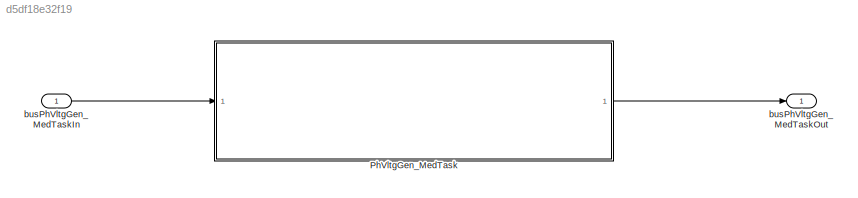
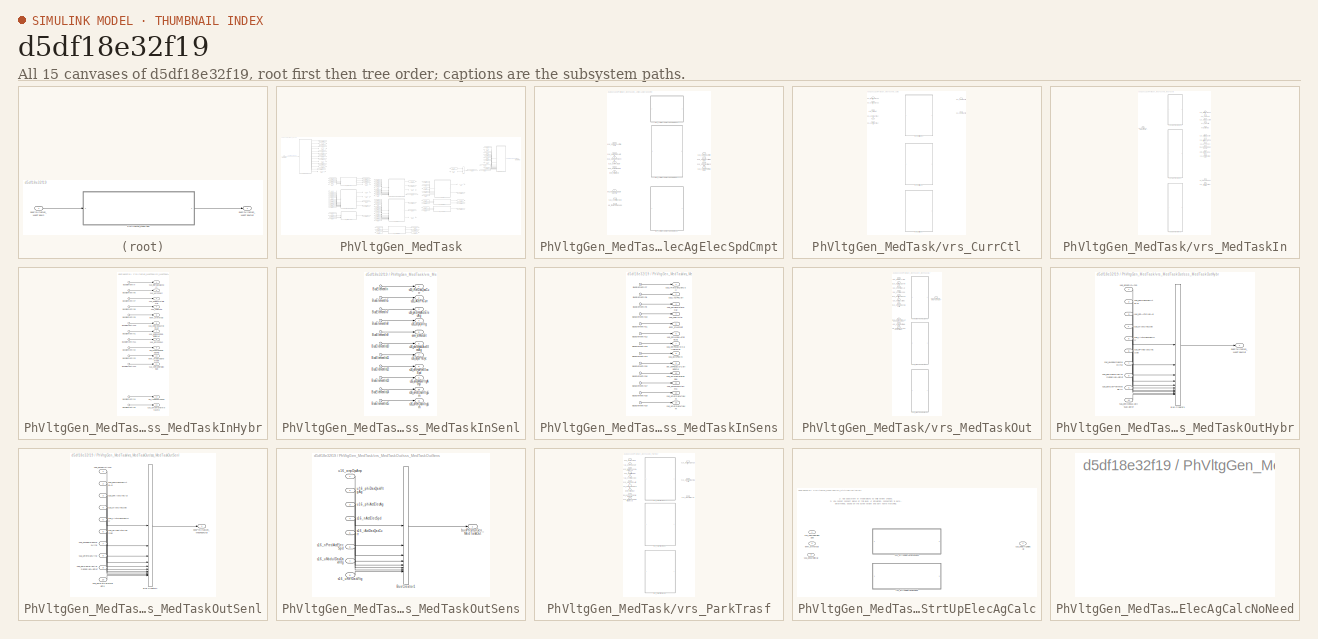
[diagram: thumbnail index - all 15 canvases of the model, root first then tree order]
MODEL slx_d5df18e32f19
KIND model
CONFIG AbsTol = auto
CONFIG EnableMultiTasking = on
CONFIG FixedStep = 0.0005
CONFIG MaxStep = auto
CONFIG MinStep = auto
CONFIG RelTol = 1e-3
CONFIG SampleTimeConstraint = Unconstrained
CONFIG SolverName = FixedStepAuto
CONFIG StartTime = 0.0
CONFIG StopTime = 5
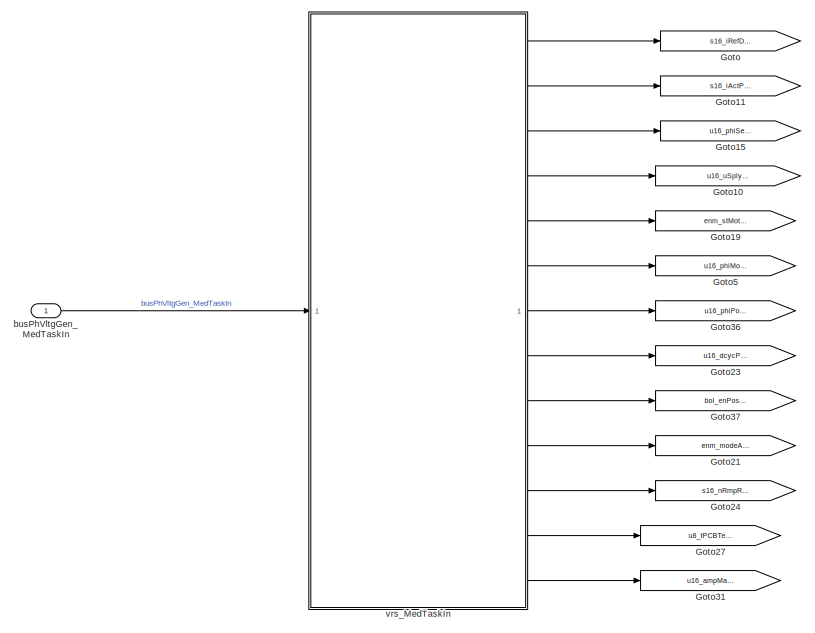
[diagram: PhVltgGen_MedTask - part 1/5, top left region]
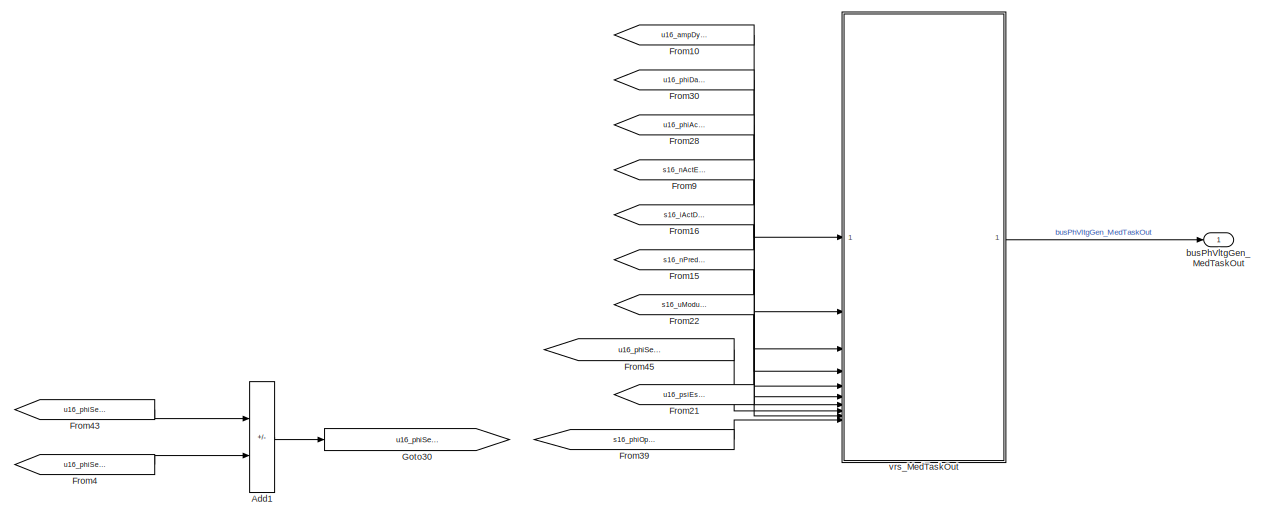
[diagram: PhVltgGen_MedTask - part 2/5, top right region]
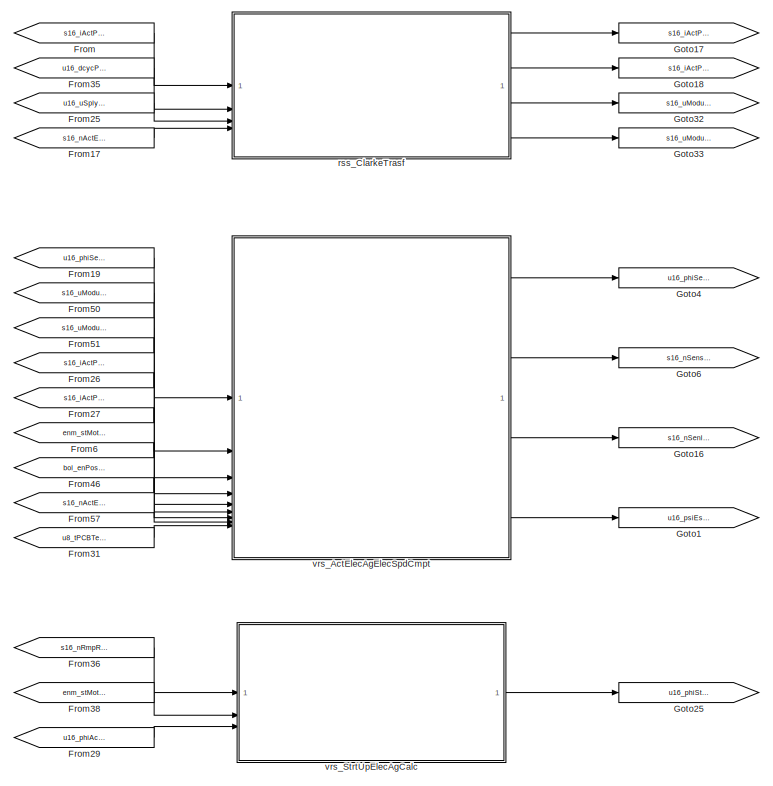
[diagram: PhVltgGen_MedTask - part 3/5, middle left region]
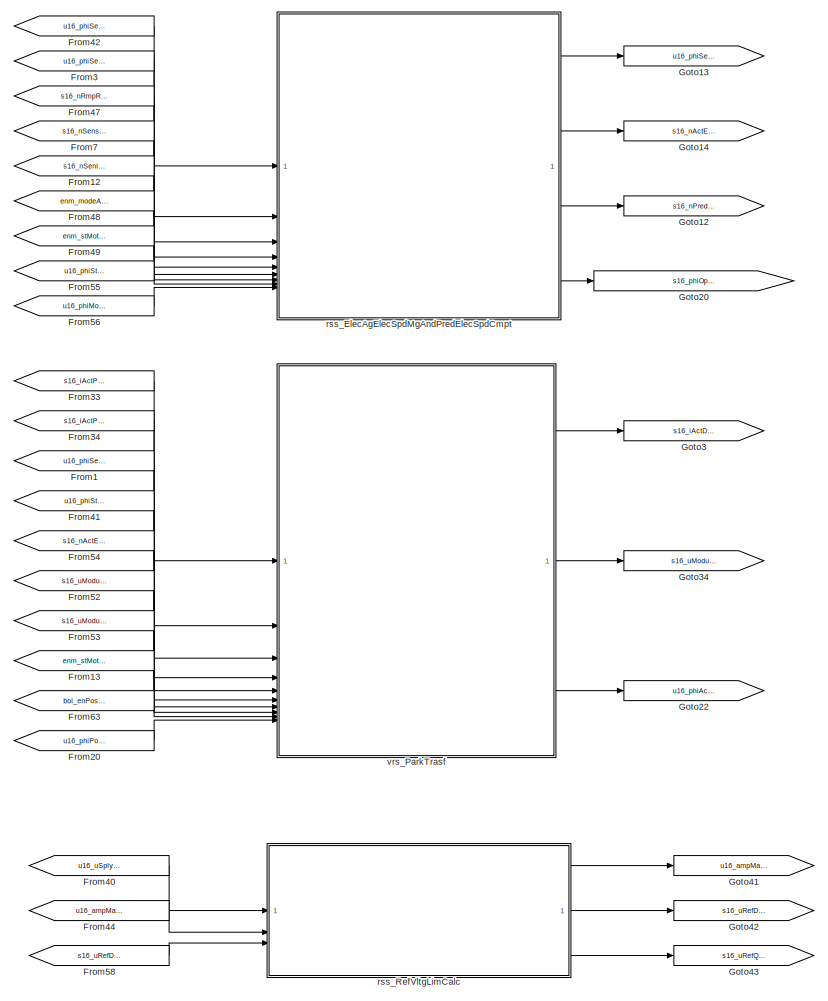
[diagram: PhVltgGen_MedTask - part 4/5, bottom center region]
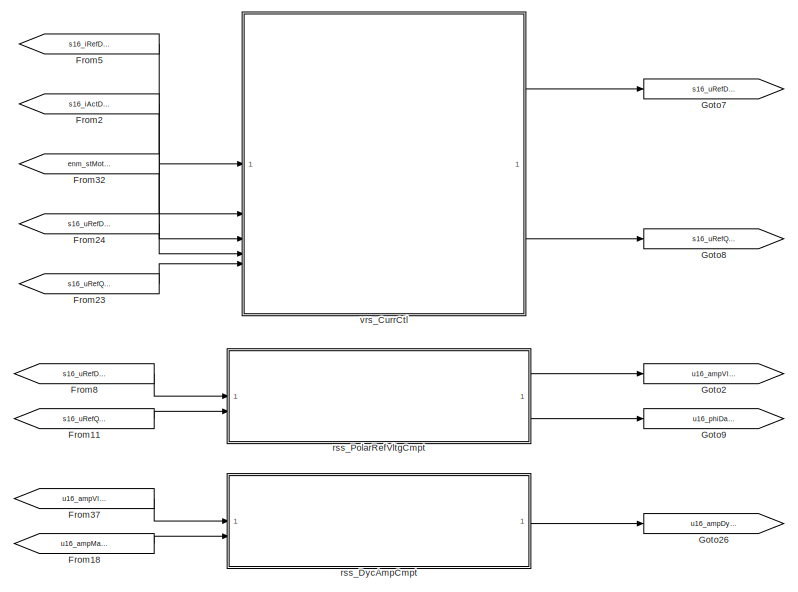
[diagram: PhVltgGen_MedTask - part 5/5, middle right region]
BLOCK [SubSystem] PhVltgGen_MedTask
  RTWFcnName = PhVltgGen_MedTask
  RTWFcnNameOpts = User specified
  RTWSystemCode = Nonreusable function
  TreatAsAtomicUnit = on
BLOCK [Sum] PhVltgGen_MedTask/Add1
  IconShape = rectangular
  InitFcn = Simulink.suppressDiagnostic(gcb,...\n'SimulinkFixedPoint:util:Overflowoccurred');
  Inputs = +-
  OutDataTypeStr = Inherit: Same as first input
BLOCK [From] PhVltgGen_MedTask/From
  GotoTag = s16_iActPhCurr
BLOCK [From] PhVltgGen_MedTask/From1
  GotoTag = u16_phiSensSenlActElecAg
BLOCK [From] PhVltgGen_MedTask/From10
  GotoTag = u16_ampDycAmp
BLOCK [From] PhVltgGen_MedTask/From11
  GotoTag = s16_uRefQaxVltg
BLOCK [From] PhVltgGen_MedTask/From12
  GotoTag = s16_nSenlActElecSpd
BLOCK [From] PhVltgGen_MedTask/From13
  GotoTag = enm_stMotoSt
BLOCK [From] PhVltgGen_MedTask/From15
  GotoTag = s16_nPredActElecSpd
BLOCK [From] PhVltgGen_MedTask/From16
  GotoTag = s16_iActDaxQaxCurr
BLOCK [From] PhVltgGen_MedTask/From17
  GotoTag = s16_nActElecSpd
BLOCK [From] PhVltgGen_MedTask/From18
  GotoTag = u16_ampMaxVltgAmp
BLOCK [From] PhVltgGen_MedTask/From19
  GotoTag = u16_phiSensActElecAg
BLOCK [From] PhVltgGen_MedTask/From2
  GotoTag = s16_iActDaxQaxCurr
BLOCK [From] PhVltgGen_MedTask/From20
  GotoTag = u16_phiPosSCDCalibElecAg
BLOCK [From] PhVltgGen_MedTask/From21
  GotoTag = u16_psiEstPermMagFlx
BLOCK [From] PhVltgGen_MedTask/From22
  GotoTag = s16_uModulDaxQaxVltg
BLOCK [From] PhVltgGen_MedTask/From23
  GotoTag = s16_uRefQaxVltgLim
BLOCK [From] PhVltgGen_MedTask/From24
  GotoTag = s16_uRefDaxVltgLim
BLOCK [From] PhVltgGen_MedTask/From25
  GotoTag = u16_uSplyVltg
BLOCK [From] PhVltgGen_MedTask/From26
  GotoTag = s16_iActPhAlCurr
BLOCK [From] PhVltgGen_MedTask/From27
  GotoTag = s16_iActPhBeCurr
BLOCK [From] PhVltgGen_MedTask/From28
  GotoTag = u16_phiActElecAg
BLOCK [From] PhVltgGen_MedTask/From29
  GotoTag = u16_phiActElecAg
BLOCK [From] PhVltgGen_MedTask/From3
  GotoTag = u16_phiSenlActElecAg
BLOCK [From] PhVltgGen_MedTask/From30
  GotoTag = u16_phiDaxQaxVltgAg
BLOCK [From] PhVltgGen_MedTask/From31
  GotoTag = u8_tPCBTempSubs
BLOCK [From] PhVltgGen_MedTask/From32
  GotoTag = enm_stMotoSt
BLOCK [From] PhVltgGen_MedTask/From33
  GotoTag = s16_iActPhAlCurr
BLOCK [From] PhVltgGen_MedTask/From34
  GotoTag = s16_iActPhBeCurr
BLOCK [From] PhVltgGen_MedTask/From35
  GotoTag = u16_dcycPhDyc
BLOCK [From] PhVltgGen_MedTask/From36
  GotoTag = s16_nRmpRefElecSpd
BLOCK [From] PhVltgGen_MedTask/From37
  GotoTag = u16_ampVltgAmp
BLOCK [From] PhVltgGen_MedTask/From38
  GotoTag = enm_stMotoSt
BLOCK [From] PhVltgGen_MedTask/From39
  GotoTag = s16_phiOpnLpAgClsLpAgDvt
BLOCK [From] PhVltgGen_MedTask/From4
  GotoTag = u16_phiSenlActElecAg
BLOCK [From] PhVltgGen_MedTask/From40
  GotoTag = u16_uSplyVltg
BLOCK [From] PhVltgGen_MedTask/From41
  GotoTag = u16_phiStrtUpElecAg
BLOCK [From] PhVltgGen_MedTask/From42
  GotoTag = u16_phiSensActElecAg
BLOCK [From] PhVltgGen_MedTask/From43
  GotoTag = u16_phiSensActElecAg
BLOCK [From] PhVltgGen_MedTask/From44
  GotoTag = u16_ampMaxNrmVltgAmp
BLOCK [From] PhVltgGen_MedTask/From45
  GotoTag = u16_phiSenlElecAgSensElecAgDvt
BLOCK [From] PhVltgGen_MedTask/From46
  GotoTag = bol_enPosSCDCalibEnFlg
BLOCK [From] PhVltgGen_MedTask/From47
  GotoTag = s16_nRmpRefElecSpd
BLOCK [From] PhVltgGen_MedTask/From48
  GotoTag = enm_modeAgEvalMode
BLOCK [From] PhVltgGen_MedTask/From49
  GotoTag = enm_stMotoSt
BLOCK [From] PhVltgGen_MedTask/From5
  GotoTag = s16_iRefDaxQaxCurr
BLOCK [From] PhVltgGen_MedTask/From50
  GotoTag = s16_uModulPhAlVltg
BLOCK [From] PhVltgGen_MedTask/From51
  GotoTag = s16_uModulPhBeVltg
BLOCK [From] PhVltgGen_MedTask/From52
  GotoTag = s16_uModulPhAlVltg
BLOCK [From] PhVltgGen_MedTask/From53
  GotoTag = s16_uModulPhBeVltg
BLOCK [From] PhVltgGen_MedTask/From54
  GotoTag = s16_nActElecSpd
BLOCK [From] PhVltgGen_MedTask/From55
  GotoTag = u16_phiStrtUpElecAg
BLOCK [From] PhVltgGen_MedTask/From56
  GotoTag = u16_phiModulActElecAg
BLOCK [From] PhVltgGen_MedTask/From57
  GotoTag = s16_nActElecSpd
BLOCK [From] PhVltgGen_MedTask/From58
  GotoTag = s16_uRefDaxVltg
BLOCK [From] PhVltgGen_MedTask/From6
  GotoTag = enm_stMotoSt
BLOCK [From] PhVltgGen_MedTask/From63
  GotoTag = bol_enPosSCDCalibEnFlg
BLOCK [From] PhVltgGen_MedTask/From7
  GotoTag = s16_nSensActElecSpd
BLOCK [From] PhVltgGen_MedTask/From8
  GotoTag = s16_uRefDaxVltg
BLOCK [From] PhVltgGen_MedTask/From9
  GotoTag = s16_nActElecSpd
BLOCK [Goto] PhVltgGen_MedTask/Goto
  GotoTag = s16_iRefDaxQaxCurr
BLOCK [Goto] PhVltgGen_MedTask/Goto1
  GotoTag = u16_psiEstPermMagFlx
BLOCK [Goto] PhVltgGen_MedTask/Goto10
  GotoTag = u16_uSplyVltg
BLOCK [Goto] PhVltgGen_MedTask/Goto11
  GotoTag = s16_iActPhCurr
BLOCK [Goto] PhVltgGen_MedTask/Goto12
  GotoTag = s16_nPredActElecSpd
BLOCK [Goto] PhVltgGen_MedTask/Goto13
  GotoTag = u16_phiSensSenlActElecAg
BLOCK [Goto] PhVltgGen_MedTask/Goto14
  GotoTag = s16_nActElecSpd
BLOCK [Goto] PhVltgGen_MedTask/Goto15
  GotoTag = u16_phiSensActElecAg
BLOCK [Goto] PhVltgGen_MedTask/Goto16
  GotoTag = s16_nSenlActElecSpd
BLOCK [Goto] PhVltgGen_MedTask/Goto17
  GotoTag = s16_iActPhAlCurr
BLOCK [Goto] PhVltgGen_MedTask/Goto18
  GotoTag = s16_iActPhBeCurr
BLOCK [Goto] PhVltgGen_MedTask/Goto19
  GotoTag = enm_stMotoSt
BLOCK [Goto] PhVltgGen_MedTask/Goto2
  GotoTag = u16_ampVltgAmp
BLOCK [Goto] PhVltgGen_MedTask/Goto20
  GotoTag = s16_phiOpnLpAgClsLpAgDvt
BLOCK [Goto] PhVltgGen_MedTask/Goto21
  GotoTag = enm_modeAgEvalMode
BLOCK [Goto] PhVltgGen_MedTask/Goto22
  GotoTag = u16_phiActElecAg
BLOCK [Goto] PhVltgGen_MedTask/Goto23
  GotoTag = u16_dcycPhDyc
BLOCK [Goto] PhVltgGen_MedTask/Goto24
  GotoTag = s16_nRmpRefElecSpd
BLOCK [Goto] PhVltgGen_MedTask/Goto25
  GotoTag = u16_phiStrtUpElecAg
BLOCK [Goto] PhVltgGen_MedTask/Goto26
  GotoTag = u16_ampDycAmp
BLOCK [Goto] PhVltgGen_MedTask/Goto27
  GotoTag = u8_tPCBTempSubs
BLOCK [Goto] PhVltgGen_MedTask/Goto3
  GotoTag = s16_iActDaxQaxCurr
BLOCK [Goto] PhVltgGen_MedTask/Goto30
  GotoTag = u16_phiSenlElecAgSensElecAgDvt
BLOCK [Goto] PhVltgGen_MedTask/Goto31
  GotoTag = u16_ampMaxNrmVltgAmp
BLOCK [Goto] PhVltgGen_MedTask/Goto32
  GotoTag = s16_uModulPhAlVltg
BLOCK [Goto] PhVltgGen_MedTask/Goto33
  GotoTag = s16_uModulPhBeVltg
BLOCK [Goto] PhVltgGen_MedTask/Goto34
  GotoTag = s16_uModulDaxQaxVltg
BLOCK [Goto] PhVltgGen_MedTask/Goto36
  GotoTag = u16_phiPosSCDCalibElecAg
BLOCK [Goto] PhVltgGen_MedTask/Goto37
  GotoTag = bol_enPosSCDCalibEnFlg
BLOCK [Goto] PhVltgGen_MedTask/Goto4
  GotoTag = u16_phiSenlActElecAg
BLOCK [Goto] PhVltgGen_MedTask/Goto41
  GotoTag = u16_ampMaxVltgAmp
BLOCK [Goto] PhVltgGen_MedTask/Goto42
  GotoTag = s16_uRefDaxVltgLim
BLOCK [Goto] PhVltgGen_MedTask/Goto43
  GotoTag = s16_uRefQaxVltgLim
BLOCK [Goto] PhVltgGen_MedTask/Goto5
  GotoTag = u16_phiModulActElecAg
BLOCK [Goto] PhVltgGen_MedTask/Goto6
  GotoTag = s16_nSensActElecSpd
BLOCK [Goto] PhVltgGen_MedTask/Goto7
  GotoTag = s16_uRefDaxVltg
BLOCK [Goto] PhVltgGen_MedTask/Goto8
  GotoTag = s16_uRefQaxVltg
BLOCK [Goto] PhVltgGen_MedTask/Goto9
  GotoTag = u16_phiDaxQaxVltgAg
BLOCK [Inport] PhVltgGen_MedTask/busPhVltgGen_MedTaskIn
BLOCK [Outport] PhVltgGen_MedTask/busPhVltgGen_MedTaskOut
BLOCK [SubSystem] PhVltgGen_MedTask/rss_ClarkeTrasf
  ReferencedSubsystem = rss_ClarkeTrasf
BLOCK [SubSystem] PhVltgGen_MedTask/rss_DycAmpCmpt
  ReferencedSubsystem = rss_DycAmpCmpt
BLOCK [SubSystem] PhVltgGen_MedTask/rss_ElecAgElecSpdMgAndPredElecSpdCmpt
  ReferencedSubsystem = rss_ElecAgElecSpdMgAndPredElecSpdCmpt
  VariantControl = Choice
BLOCK [SubSystem] PhVltgGen_MedTask/rss_PolarRefVltgCmpt
  ReferencedSubsystem = rss_PolarRefVltgCmpt
BLOCK [SubSystem] PhVltgGen_MedTask/rss_RefVltgLimCalc
  ReferencedSubsystem = rss_RefVltgLimCalc
BLOCK [SubSystem] PhVltgGen_MedTask/vrs_ActElecAgElecSpdCmpt
  LabelModeActiveChoice = cstHybrCtrlLbl
  Variant = on
  VariantControl = Choice
  VariantControlMode = label
BLOCK [Inport] PhVltgGen_MedTask/vrs_ActElecAgElecSpdCmpt/bol_enPosSCDCalibEnFlg
  Port = 7
BLOCK [Inport] PhVltgGen_MedTask/vrs_ActElecAgElecSpdCmpt/enm_stMotoSt
  Port = 6
BLOCK [SubSystem] PhVltgGen_MedTask/vrs_ActElecAgElecSpdCmpt/rss_ActElecAgElecSpdCmptHybr
  ReferencedSubsystem = rss_ActElecAgElecSpdCmptHybr
  VariantControl = cstHybrCtrlLbl
BLOCK [SubSystem] PhVltgGen_MedTask/vrs_ActElecAgElecSpdCmpt/rss_ActElecAgElecSpdCmptSenl
  ReferencedSubsystem = rss_ActElecAgElecSpdCmptSenl
  VariantControl = cstSenlCtrlLbl
BLOCK [SubSystem] PhVltgGen_MedTask/vrs_ActElecAgElecSpdCmpt/rss_ActElecAgElecSpdCmptSens
  ReferencedSubsystem = rss_ActElecAgElecSpdCmptSens
  VariantControl = cstSensCtrlLbl
BLOCK [Inport] PhVltgGen_MedTask/vrs_ActElecAgElecSpdCmpt/s16_iActPhAlCurr
  Port = 4
BLOCK [Inport] PhVltgGen_MedTask/vrs_ActElecAgElecSpdCmpt/s16_iActPhBeCurr
  Port = 5
BLOCK [Inport] PhVltgGen_MedTask/vrs_ActElecAgElecSpdCmpt/s16_nActElecSpd
  Port = 8
BLOCK [Outport] PhVltgGen_MedTask/vrs_ActElecAgElecSpdCmpt/s16_nSenlActElecSpd
  Port = 3
  PortDimensions = 1
  SamplingMode = Sample based
  SignalType = real
  VarSizeSig = No
  VectorParamsAs1DForOutWhenUnconnected = off
BLOCK [Outport] PhVltgGen_MedTask/vrs_ActElecAgElecSpdCmpt/s16_nSensActElecSpd
  Port = 2
BLOCK [Inport] PhVltgGen_MedTask/vrs_ActElecAgElecSpdCmpt/s16_uModulPhAlVltg
  Port = 2
BLOCK [Inport] PhVltgGen_MedTask/vrs_ActElecAgElecSpdCmpt/s16_uModulPhBeVltg
  Port = 3
BLOCK [Outport] PhVltgGen_MedTask/vrs_ActElecAgElecSpdCmpt/u16_phiSenlActElecAg
BLOCK [Inport] PhVltgGen_MedTask/vrs_ActElecAgElecSpdCmpt/u16_phiSensActElecAg
BLOCK [Outport] PhVltgGen_MedTask/vrs_ActElecAgElecSpdCmpt/u16_psiEstPermMagFlx
  Port = 4
  PortDimensions = 1
  SamplingMode = Sample based
  SignalType = real
  VarSizeSig = No
  VectorParamsAs1DForOutWhenUnconnected = off
BLOCK [Inport] PhVltgGen_MedTask/vrs_ActElecAgElecSpdCmpt/u8_tPCBTempSubs
  Port = 9
BLOCK [SubSystem] PhVltgGen_MedTask/vrs_CurrCtl
  LabelModeActiveChoice = cstSensCtrlLbl
  Variant = on
  VariantControl = Choice
  VariantControlMode = label
BLOCK [Inport] PhVltgGen_MedTask/vrs_CurrCtl/enm_stMotoSt
  Port = 3
BLOCK [SubSystem] PhVltgGen_MedTask/vrs_CurrCtl/rss_CurrCtlHybr
  ReferencedSubsystem = rss_CurrCtlHybr
  VariantControl = cstHybrCtrlLbl
BLOCK [SubSystem] PhVltgGen_MedTask/vrs_CurrCtl/rss_CurrCtlSenl
  ReferencedSubsystem = rss_CurrCtlSenl
  VariantControl = cstSenlCtrlLbl
BLOCK [SubSystem] PhVltgGen_MedTask/vrs_CurrCtl/rss_CurrCtlSens
  ReferencedSubsystem = rss_CurrCtlSens
  VariantControl = cstSensCtrlLbl
BLOCK [Inport] PhVltgGen_MedTask/vrs_CurrCtl/s16_iActDaxQaxCurr
  Port = 2
BLOCK [Inport] PhVltgGen_MedTask/vrs_CurrCtl/s16_iRefDaxQaxCurr
BLOCK [Outport] PhVltgGen_MedTask/vrs_CurrCtl/s16_uRefDaxVltg
BLOCK [Inport] PhVltgGen_MedTask/vrs_CurrCtl/s16_uRefDaxVltgLim
  OutDataTypeStr = dt_Standardize_s16p15b0
  Port = 4
BLOCK [Outport] PhVltgGen_MedTask/vrs_CurrCtl/s16_uRefQaxVltg
  Port = 2
BLOCK [Inport] PhVltgGen_MedTask/vrs_CurrCtl/s16_uRefQaxVltgLim
  OutDataTypeStr = dt_Standardize_s16p15b0
  Port = 5
BLOCK [SubSystem] PhVltgGen_MedTask/vrs_MedTaskIn
  LabelModeActiveChoice = cstHybrCtrlLbl
  Variant = on
  VariantControl = Choice
  VariantControlMode = label
BLOCK [Outport] PhVltgGen_MedTask/vrs_MedTaskIn/bol_enPosSCDCalibEnFlg
  Port = 9
BLOCK [Inport] PhVltgGen_MedTask/vrs_MedTaskIn/busPhVltgGen_MedTaskIn
BLOCK [Outport] PhVltgGen_MedTask/vrs_MedTaskIn/enm_modeAgEvalMode
  Port = 10
BLOCK [Outport] PhVltgGen_MedTask/vrs_MedTaskIn/enm_stMotoSt
  Port = 5
BLOCK [Outport] PhVltgGen_MedTask/vrs_MedTaskIn/s16_iActPhCurr
  Port = 2
BLOCK [Outport] PhVltgGen_MedTask/vrs_MedTaskIn/s16_iRefDaxQaxCurr
BLOCK [Outport] PhVltgGen_MedTask/vrs_MedTaskIn/s16_nRmpRefElecSpd
  Port = 11
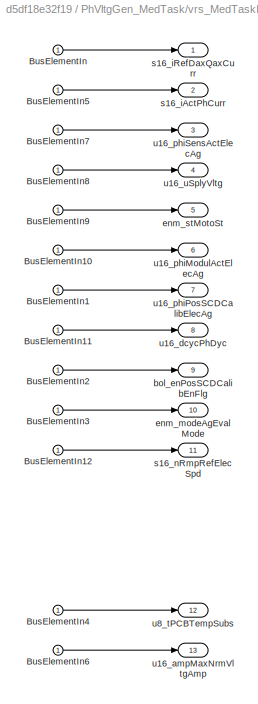
BLOCK [SubSystem] PhVltgGen_MedTask/vrs_MedTaskIn/sss_MedTaskInHybr
  VariantControl = cstHybrCtrlLbl
BLOCK [Inport] PhVltgGen_MedTask/vrs_MedTaskIn/sss_MedTaskInHybr/BusElementIn
BLOCK [Inport] PhVltgGen_MedTask/vrs_MedTaskIn/sss_MedTaskInHybr/BusElementIn1
BLOCK [Inport] PhVltgGen_MedTask/vrs_MedTaskIn/sss_MedTaskInHybr/BusElementIn10
BLOCK [Inport] PhVltgGen_MedTask/vrs_MedTaskIn/sss_MedTaskInHybr/BusElementIn11
BLOCK [Inport] PhVltgGen_MedTask/vrs_MedTaskIn/sss_MedTaskInHybr/BusElementIn12
BLOCK [Inport] PhVltgGen_MedTask/vrs_MedTaskIn/sss_MedTaskInHybr/BusElementIn2
BLOCK [Inport] PhVltgGen_MedTask/vrs_MedTaskIn/sss_MedTaskInHybr/BusElementIn3
BLOCK [Inport] PhVltgGen_MedTask/vrs_MedTaskIn/sss_MedTaskInHybr/BusElementIn4
BLOCK [Inport] PhVltgGen_MedTask/vrs_MedTaskIn/sss_MedTaskInHybr/BusElementIn5
BLOCK [Inport] PhVltgGen_MedTask/vrs_MedTaskIn/sss_MedTaskInHybr/BusElementIn6
BLOCK [Inport] PhVltgGen_MedTask/vrs_MedTaskIn/sss_MedTaskInHybr/BusElementIn7
BLOCK [Inport] PhVltgGen_MedTask/vrs_MedTaskIn/sss_MedTaskInHybr/BusElementIn8
BLOCK [Inport] PhVltgGen_MedTask/vrs_MedTaskIn/sss_MedTaskInHybr/BusElementIn9
BLOCK [Outport] PhVltgGen_MedTask/vrs_MedTaskIn/sss_MedTaskInHybr/bol_enPosSCDCalibEnFlg
  Port = 9
BLOCK [Outport] PhVltgGen_MedTask/vrs_MedTaskIn/sss_MedTaskInHybr/enm_modeAgEvalMode
  Port = 10
BLOCK [Outport] PhVltgGen_MedTask/vrs_MedTaskIn/sss_MedTaskInHybr/enm_stMotoSt
  Port = 5
BLOCK [Outport] PhVltgGen_MedTask/vrs_MedTaskIn/sss_MedTaskInHybr/s16_iActPhCurr
  Port = 2
BLOCK [Outport] PhVltgGen_MedTask/vrs_MedTaskIn/sss_MedTaskInHybr/s16_iRefDaxQaxCurr
BLOCK [Outport] PhVltgGen_MedTask/vrs_MedTaskIn/sss_MedTaskInHybr/s16_nRmpRefElecSpd
  Port = 11
BLOCK [Outport] PhVltgGen_MedTask/vrs_MedTaskIn/sss_MedTaskInHybr/u16_ampMaxNrmVltgAmp
  Port = 13
BLOCK [Outport] PhVltgGen_MedTask/vrs_MedTaskIn/sss_MedTaskInHybr/u16_dcycPhDyc
  Port = 8
BLOCK [Outport] PhVltgGen_MedTask/vrs_MedTaskIn/sss_MedTaskInHybr/u16_phiModulActElecAg
  Port = 6
BLOCK [Outport] PhVltgGen_MedTask/vrs_MedTaskIn/sss_MedTaskInHybr/u16_phiPosSCDCalibElecAg
  Port = 7
BLOCK [Outport] PhVltgGen_MedTask/vrs_MedTaskIn/sss_MedTaskInHybr/u16_phiSensActElecAg
  OutDataTypeStr = dt_RadAng_u16r15b0
  Port = 3
BLOCK [Outport] PhVltgGen_MedTask/vrs_MedTaskIn/sss_MedTaskInHybr/u16_uSplyVltg
  Port = 4
BLOCK [Outport] PhVltgGen_MedTask/vrs_MedTaskIn/sss_MedTaskInHybr/u8_tPCBTempSubs
  Port = 12
BLOCK [SubSystem] PhVltgGen_MedTask/vrs_MedTaskIn/sss_MedTaskInSenl
  VariantControl = cstSenlCtrlLbl
BLOCK [Inport] PhVltgGen_MedTask/vrs_MedTaskIn/sss_MedTaskInSenl/BusElementIn
BLOCK [Inport] PhVltgGen_MedTask/vrs_MedTaskIn/sss_MedTaskInSenl/BusElementIn10
BLOCK [Inport] PhVltgGen_MedTask/vrs_MedTaskIn/sss_MedTaskInSenl/BusElementIn11
BLOCK [Inport] PhVltgGen_MedTask/vrs_MedTaskIn/sss_MedTaskInSenl/BusElementIn12
BLOCK [Inport] PhVltgGen_MedTask/vrs_MedTaskIn/sss_MedTaskInSenl/BusElementIn13
BLOCK [Inport] PhVltgGen_MedTask/vrs_MedTaskIn/sss_MedTaskInSenl/BusElementIn14
BLOCK [Inport] PhVltgGen_MedTask/vrs_MedTaskIn/sss_MedTaskInSenl/BusElementIn15
BLOCK [Inport] PhVltgGen_MedTask/vrs_MedTaskIn/sss_MedTaskInSenl/BusElementIn5
BLOCK [Inport] PhVltgGen_MedTask/vrs_MedTaskIn/sss_MedTaskInSenl/BusElementIn7
BLOCK [Inport] PhVltgGen_MedTask/vrs_MedTaskIn/sss_MedTaskInSenl/BusElementIn8
BLOCK [Inport] PhVltgGen_MedTask/vrs_MedTaskIn/sss_MedTaskInSenl/BusElementIn9
BLOCK [Outport] PhVltgGen_MedTask/vrs_MedTaskIn/sss_MedTaskInSenl/enm_stMotoSt
  Port = 5
BLOCK [Outport] PhVltgGen_MedTask/vrs_MedTaskIn/sss_MedTaskInSenl/s16_iActPhCurr
  Port = 2
BLOCK [Outport] PhVltgGen_MedTask/vrs_MedTaskIn/sss_MedTaskInSenl/s16_iRefDaxQaxCurr
BLOCK [Outport] PhVltgGen_MedTask/vrs_MedTaskIn/sss_MedTaskInSenl/s16_nRmpRefElecSpd
  Port = 8
BLOCK [Outport] PhVltgGen_MedTask/vrs_MedTaskIn/sss_MedTaskInSenl/s16_uRefDaxVltgLim
  Port = 10
BLOCK [Outport] PhVltgGen_MedTask/vrs_MedTaskIn/sss_MedTaskInSenl/s16_uRefQaxVltgLim
  Port = 11
BLOCK [Outport] PhVltgGen_MedTask/vrs_MedTaskIn/sss_MedTaskInSenl/u16_ampMaxVltgAmp
  Port = 9
BLOCK [Outport] PhVltgGen_MedTask/vrs_MedTaskIn/sss_MedTaskInSenl/u16_dcycPhDyc
  Port = 7
BLOCK [Outport] PhVltgGen_MedTask/vrs_MedTaskIn/sss_MedTaskInSenl/u16_phiModulActElecAg
  Port = 6
BLOCK [Outport] PhVltgGen_MedTask/vrs_MedTaskIn/sss_MedTaskInSenl/u16_phiSensActElecAg
  OutDataTypeStr = dt_RadAng_u16r15b0
  Port = 3
BLOCK [Outport] PhVltgGen_MedTask/vrs_MedTaskIn/sss_MedTaskInSenl/u16_uSplyVltg
  Port = 4
BLOCK [SubSystem] PhVltgGen_MedTask/vrs_MedTaskIn/sss_MedTaskInSens
  VariantControl = cstSensCtrlLbl
BLOCK [Inport] PhVltgGen_MedTask/vrs_MedTaskIn/sss_MedTaskInSens/BusElementIn10
BLOCK [Inport] PhVltgGen_MedTask/vrs_MedTaskIn/sss_MedTaskInSens/BusElementIn11
BLOCK [Inport] PhVltgGen_MedTask/vrs_MedTaskIn/sss_MedTaskInSens/BusElementIn12
BLOCK [Inport] PhVltgGen_MedTask/vrs_MedTaskIn/sss_MedTaskInSens/BusElementIn13
BLOCK [Inport] PhVltgGen_MedTask/vrs_MedTaskIn/sss_MedTaskInSens/BusElementIn14
BLOCK [Inport] PhVltgGen_MedTask/vrs_MedTaskIn/sss_MedTaskInSens/BusElementIn15
BLOCK [Inport] PhVltgGen_MedTask/vrs_MedTaskIn/sss_MedTaskInSens/BusElementIn16
BLOCK [Inport] PhVltgGen_MedTask/vrs_MedTaskIn/sss_MedTaskInSens/BusElementIn17
BLOCK [Inport] PhVltgGen_MedTask/vrs_MedTaskIn/sss_MedTaskInSens/BusElementIn18
BLOCK [Inport] PhVltgGen_MedTask/vrs_MedTaskIn/sss_MedTaskInSens/BusElementIn19
BLOCK [Inport] PhVltgGen_MedTask/vrs_MedTaskIn/sss_MedTaskInSens/BusElementIn7
BLOCK [Inport] PhVltgGen_MedTask/vrs_MedTaskIn/sss_MedTaskInSens/BusElementIn8
BLOCK [Inport] PhVltgGen_MedTask/vrs_MedTaskIn/sss_MedTaskInSens/BusElementIn9
BLOCK [Outport] PhVltgGen_MedTask/vrs_MedTaskIn/sss_MedTaskInSens/bol_enPosSCDCalibEnFlg
  Port = 9
BLOCK [Outport] PhVltgGen_MedTask/vrs_MedTaskIn/sss_MedTaskInSens/enm_stMotoSt
  Port = 5
BLOCK [Outport] PhVltgGen_MedTask/vrs_MedTaskIn/sss_MedTaskInSens/s16_iActPhCurr
  Port = 2
BLOCK [Outport] PhVltgGen_MedTask/vrs_MedTaskIn/sss_MedTaskInSens/s16_iRefDaxQaxCurr
BLOCK [Outport] PhVltgGen_MedTask/vrs_MedTaskIn/sss_MedTaskInSens/s16_nRmpRefElecSpd
  Port = 10
BLOCK [Outport] PhVltgGen_MedTask/vrs_MedTaskIn/sss_MedTaskInSens/s16_uRefDaxVltgLim
  Port = 12
BLOCK [Outport] PhVltgGen_MedTask/vrs_MedTaskIn/sss_MedTaskInSens/s16_uRefQaxVltgLim
  Port = 13
BLOCK [Outport] PhVltgGen_MedTask/vrs_MedTaskIn/sss_MedTaskInSens/u16_ampMaxVltgAmp
  Port = 11
BLOCK [Outport] PhVltgGen_MedTask/vrs_MedTaskIn/sss_MedTaskInSens/u16_dcycPhDyc
  Port = 8
BLOCK [Outport] PhVltgGen_MedTask/vrs_MedTaskIn/sss_MedTaskInSens/u16_phiModulActElecAg
  Port = 6
BLOCK [Outport] PhVltgGen_MedTask/vrs_MedTaskIn/sss_MedTaskInSens/u16_phiPosSCDCalibElecAg
  Port = 7
BLOCK [Outport] PhVltgGen_MedTask/vrs_MedTaskIn/sss_MedTaskInSens/u16_phiSensActElecAg
  Port = 3
BLOCK [Outport] PhVltgGen_MedTask/vrs_MedTaskIn/sss_MedTaskInSens/u16_uSplyVltg
  Port = 4
BLOCK [Outport] PhVltgGen_MedTask/vrs_MedTaskIn/u16_ampMaxNrmVltgAmp
  Port = 13
BLOCK [Outport] PhVltgGen_MedTask/vrs_MedTaskIn/u16_dcycPhDyc
  Port = 8
BLOCK [Outport] PhVltgGen_MedTask/vrs_MedTaskIn/u16_phiModulActElecAg
  Port = 6
BLOCK [Outport] PhVltgGen_MedTask/vrs_MedTaskIn/u16_phiPosSCDCalibElecAg
  Port = 7
BLOCK [Outport] PhVltgGen_MedTask/vrs_MedTaskIn/u16_phiSensActElecAg
  Port = 3
BLOCK [Outport] PhVltgGen_MedTask/vrs_MedTaskIn/u16_uSplyVltg
  Port = 4
BLOCK [Outport] PhVltgGen_MedTask/vrs_MedTaskIn/u8_tPCBTempSubs
  Port = 12
BLOCK [SubSystem] PhVltgGen_MedTask/vrs_MedTaskOut
  LabelModeActiveChoice = cstHybrCtrlLbl
  Variant = on
  VariantControl = Choice
  VariantControlMode = label
BLOCK [Outport] PhVltgGen_MedTask/vrs_MedTaskOut/busPhVltgGen_MedTaskOut
BLOCK [Inport] PhVltgGen_MedTask/vrs_MedTaskOut/s16_iActDaxQaxCurr
  Port = 5
BLOCK [Inport] PhVltgGen_MedTask/vrs_MedTaskOut/s16_nActElecSpd
  Port = 4
BLOCK [Inport] PhVltgGen_MedTask/vrs_MedTaskOut/s16_nPredActElecSpd
  Port = 6
BLOCK [Inport] PhVltgGen_MedTask/vrs_MedTaskOut/s16_phiOpnLpAgClsLpAgDvt
  Port = 10
BLOCK [Inport] PhVltgGen_MedTask/vrs_MedTaskOut/s16_uModulDaxQaxVltg
  Port = 7
BLOCK [SubSystem] PhVltgGen_MedTask/vrs_MedTaskOut/sss_MedTaskOutHybr
  VariantControl = cstHybrCtrlLbl
BLOCK [BusCreator] PhVltgGen_MedTask/vrs_MedTaskOut/sss_MedTaskOutHybr/Bus Creator1
  DisplayOption = bar
  InheritFromInputs = off
  Inputs = 10
  NonVirtualBus = on
  OutDataTypeStr = Bus: BUS_PHVLTGGEN_MED_TASK_OUT
BLOCK [Outport] PhVltgGen_MedTask/vrs_MedTaskOut/sss_MedTaskOutHybr/busPhVltgGen_MedTaskOut
BLOCK [Inport] PhVltgGen_MedTask/vrs_MedTaskOut/sss_MedTaskOutHybr/s16_iActDaxQaxCurr
  Port = 5
BLOCK [Inport] PhVltgGen_MedTask/vrs_MedTaskOut/sss_MedTaskOutHybr/s16_nActElecSpd
  Port = 4
BLOCK [Inport] PhVltgGen_MedTask/vrs_MedTaskOut/sss_MedTaskOutHybr/s16_nPredActElecSpd
  Port = 6
BLOCK [Inport] PhVltgGen_MedTask/vrs_MedTaskOut/sss_MedTaskOutHybr/s16_phiOpnLpAgClsLpAgDvt
  Port = 10
BLOCK [Inport] PhVltgGen_MedTask/vrs_MedTaskOut/sss_MedTaskOutHybr/s16_uModulDaxQaxVltg
  Port = 7
BLOCK [Inport] PhVltgGen_MedTask/vrs_MedTaskOut/sss_MedTaskOutHybr/u16_ampDycAmp
BLOCK [Inport] PhVltgGen_MedTask/vrs_MedTaskOut/sss_MedTaskOutHybr/u16_phiActElecAg
  Port = 3
BLOCK [Inport] PhVltgGen_MedTask/vrs_MedTaskOut/sss_MedTaskOutHybr/u16_phiDaxQaxVltgAg
  Port = 2
BLOCK [Inport] PhVltgGen_MedTask/vrs_MedTaskOut/sss_MedTaskOutHybr/u16_phiSenlElecAgSensElecAgDvt
  Port = 8
BLOCK [Inport] PhVltgGen_MedTask/vrs_MedTaskOut/sss_MedTaskOutHybr/u16_psiEstPermMagFlx
  Port = 9
BLOCK [SubSystem] PhVltgGen_MedTask/vrs_MedTaskOut/sss_MedTaskOutSenl
  VariantControl = cstSenlCtrlLbl
BLOCK [BusCreator] PhVltgGen_MedTask/vrs_MedTaskOut/sss_MedTaskOutSenl/Bus Creator1
  DisplayOption = bar
  InheritFromInputs = off
  Inputs = 10
  NonVirtualBus = on
  OutDataTypeStr = Bus: BUS_PHVLTGGEN_MED_TASK_OUT
BLOCK [Outport] PhVltgGen_MedTask/vrs_MedTaskOut/sss_MedTaskOutSenl/busPhVltgGen_MedTaskOut
BLOCK [Inport] PhVltgGen_MedTask/vrs_MedTaskOut/sss_MedTaskOutSenl/s16_iActDaxQaxCurr
  Port = 5
BLOCK [Inport] PhVltgGen_MedTask/vrs_MedTaskOut/sss_MedTaskOutSenl/s16_nActElecSpd
  Port = 4
BLOCK [Inport] PhVltgGen_MedTask/vrs_MedTaskOut/sss_MedTaskOutSenl/s16_nPredActElecSpd
  Port = 6
BLOCK [Inport] PhVltgGen_MedTask/vrs_MedTaskOut/sss_MedTaskOutSenl/s16_uModulDaxQaxVltg
  Port = 7
BLOCK [Inport] PhVltgGen_MedTask/vrs_MedTaskOut/sss_MedTaskOutSenl/s16_uRefDaxVltg
  Port = 8
BLOCK [Inport] PhVltgGen_MedTask/vrs_MedTaskOut/sss_MedTaskOutSenl/u16_ampDycAmp
BLOCK [Inport] PhVltgGen_MedTask/vrs_MedTaskOut/sss_MedTaskOutSenl/u16_phiActElecAg
  Port = 3
BLOCK [Inport] PhVltgGen_MedTask/vrs_MedTaskOut/sss_MedTaskOutSenl/u16_phiDaxQaxVltgAg
  Port = 2
BLOCK [Inport] PhVltgGen_MedTask/vrs_MedTaskOut/sss_MedTaskOutSenl/u16_phiSenlElecAgSensElecAgDvt
  Port = 9
BLOCK [Inport] PhVltgGen_MedTask/vrs_MedTaskOut/sss_MedTaskOutSenl/u16_psiEstPermMagFlx
  Port = 10
BLOCK [SubSystem] PhVltgGen_MedTask/vrs_MedTaskOut/sss_MedTaskOutSens
  VariantControl = cstSensCtrlLbl
BLOCK [BusCreator] PhVltgGen_MedTask/vrs_MedTaskOut/sss_MedTaskOutSens/Bus Creator1
  DisplayOption = bar
  InheritFromInputs = off
  Inputs = 8
  NonVirtualBus = on
  OutDataTypeStr = Bus: BUS_PHVLTGGEN_MED_TASK_OUT
BLOCK [Outport] PhVltgGen_MedTask/vrs_MedTaskOut/sss_MedTaskOutSens/busPhVltgGen_MedTaskOut
BLOCK [Inport] PhVltgGen_MedTask/vrs_MedTaskOut/sss_MedTaskOutSens/s16_iActDaxQaxCurr
  Port = 5
BLOCK [Inport] PhVltgGen_MedTask/vrs_MedTaskOut/sss_MedTaskOutSens/s16_nActElecSpd
  Port = 4
BLOCK [Inport] PhVltgGen_MedTask/vrs_MedTaskOut/sss_MedTaskOutSens/s16_nPredActElecSpd
  Port = 6
BLOCK [Inport] PhVltgGen_MedTask/vrs_MedTaskOut/sss_MedTaskOutSens/s16_uModulDaxQaxVltg
  Port = 7
BLOCK [Inport] PhVltgGen_MedTask/vrs_MedTaskOut/sss_MedTaskOutSens/s16_uRefDaxVltg
  OutDataTypeStr = dt_Standardize_s16p15b0
  Port = 8
BLOCK [Inport] PhVltgGen_MedTask/vrs_MedTaskOut/sss_MedTaskOutSens/u16_ampDycAmp
BLOCK [Inport] PhVltgGen_MedTask/vrs_MedTaskOut/sss_MedTaskOutSens/u16_phiActElecAg
  Port = 3
BLOCK [Inport] PhVltgGen_MedTask/vrs_MedTaskOut/sss_MedTaskOutSens/u16_phiDaxQaxVltgAg
  Port = 2
BLOCK [Inport] PhVltgGen_MedTask/vrs_MedTaskOut/u16_ampDycAmp
BLOCK [Inport] PhVltgGen_MedTask/vrs_MedTaskOut/u16_phiActElecAg
  Port = 3
BLOCK [Inport] PhVltgGen_MedTask/vrs_MedTaskOut/u16_phiDaxQaxVltgAg
  Port = 2
BLOCK [Inport] PhVltgGen_MedTask/vrs_MedTaskOut/u16_phiSenlElecAgSensElecAgDvt
  Port = 8
BLOCK [Inport] PhVltgGen_MedTask/vrs_MedTaskOut/u16_psiEstPermMagFlx
  Port = 9
BLOCK [SubSystem] PhVltgGen_MedTask/vrs_ParkTrasf
  LabelModeActiveChoice = cstHybrCtrlLbl
  Variant = on
  VariantControl = cstSensCtrlLbl
  VariantControlMode = label
BLOCK [Inport] PhVltgGen_MedTask/vrs_ParkTrasf/bol_enPosSCDCalibEnFlg
  Port = 9
BLOCK [Inport] PhVltgGen_MedTask/vrs_ParkTrasf/enm_stMotoSt
  Port = 8
BLOCK [SubSystem] PhVltgGen_MedTask/vrs_ParkTrasf/rss_ParkTrasfHybr
  InitFcn = Simulink.suppressDiagnostic([gcb,'/Add1'],...\n'SimulinkFixedPoint:util:Overflowoccurred');
  ReferencedSubsystem = rss_ParkTrasfHybr
  VariantControl = cstHybrCtrlLbl
BLOCK [SubSystem] PhVltgGen_MedTask/vrs_ParkTrasf/rss_ParkTrasfSenl
  InitFcn = Simulink.suppressDiagnostic([gcb,'/Add1'],...\n'SimulinkFixedPoint:util:Overflowoccurred');
  ReferencedSubsystem = rss_ParkTrasfSenl
  VariantControl = cstSenlCtrlLbl
BLOCK [SubSystem] PhVltgGen_MedTask/vrs_ParkTrasf/rss_ParkTrasfSens
  ReferencedSubsystem = rss_ParkTrasfSens
  VariantControl = cstSensCtrlLbl
BLOCK [Outport] PhVltgGen_MedTask/vrs_ParkTrasf/s16_iActDaxQaxCurr
BLOCK [Inport] PhVltgGen_MedTask/vrs_ParkTrasf/s16_iActPhAlCurr
BLOCK [Inport] PhVltgGen_MedTask/vrs_ParkTrasf/s16_iActPhBeCurr
  Port = 2
BLOCK [Inport] PhVltgGen_MedTask/vrs_ParkTrasf/s16_nActElecSpd
  Port = 5
BLOCK [Outport] PhVltgGen_MedTask/vrs_ParkTrasf/s16_uModulDaxQaxVltg
  Port = 2
BLOCK [Inport] PhVltgGen_MedTask/vrs_ParkTrasf/s16_uModulPhAlVltg
  Port = 6
BLOCK [Inport] PhVltgGen_MedTask/vrs_ParkTrasf/s16_uModulPhBeVltg
  Port = 7
BLOCK [Outport] PhVltgGen_MedTask/vrs_ParkTrasf/u16_phiActElecAg
  Port = 3
BLOCK [Inport] PhVltgGen_MedTask/vrs_ParkTrasf/u16_phiPosSCDCalibElecAg
  Port = 10
BLOCK [Inport] PhVltgGen_MedTask/vrs_ParkTrasf/u16_phiSensSenlActElecAg
  Port = 3
BLOCK [Inport] PhVltgGen_MedTask/vrs_ParkTrasf/u16_phiStrtUpElecAg
  Port = 4
BLOCK [SubSystem] PhVltgGen_MedTask/vrs_StrtUpElecAgCalc
  LabelModeActiveChoice = cstSenlCtrlLbl
  Variant = on
  VariantControlMode = label
BLOCK [Inport] PhVltgGen_MedTask/vrs_StrtUpElecAgCalc/enm_stMotoSt
  Port = 2
  PortDimensions = 1
  SamplingMode = Sample based
  SignalType = real
BLOCK [SubSystem] PhVltgGen_MedTask/vrs_StrtUpElecAgCalc/rss_StrtUpElecAgCalcNeed
  ReferencedSubsystem = rss_StrtUpElecAgCalcNeed
  VariantControl = cstSenlCtrlLbl
BLOCK [Inport] PhVltgGen_MedTask/vrs_StrtUpElecAgCalc/s16_nRmpRefElecSpd
BLOCK [SubSystem] PhVltgGen_MedTask/vrs_StrtUpElecAgCalc/sss_StrtUpElecAgCalcNoNeed
  VariantControl = cstSensCtrlLbl
BLOCK [Inport] PhVltgGen_MedTask/vrs_StrtUpElecAgCalc/u16_phiActElecAg
  Port = 3
  PortDimensions = 1
  SamplingMode = Sample based
  SignalType = real
BLOCK [Outport] PhVltgGen_MedTask/vrs_StrtUpElecAgCalc/u16_phiStrtUpElecAg
BLOCK [Inport] busPhVltgGen_MedTaskIn
  BusOutputAsStruct = on
  OutDataTypeStr = Bus: BUS_PHVLTGGEN_MED_TASK_IN
  SampleTime = round(double(Cdbl_tiMedTaskSmpTi),6)
BLOCK [Outport] busPhVltgGen_MedTaskOut
  OutDataTypeStr = Bus: BUS_PHVLTGGEN_MED_TASK_OUT
  SampleTime = round(double(Cdbl_tiMedTaskSmpTi),6)
ANNOTATION PhVltgGen_MedTask/vrs_StrtUpElecAgCalc: 1) Add Subsystem or Model blocks as valid variant choices. 2) You cannot connect blocks at this level. At simulation, connectivity is automatically determined, based on the active variant and port name matching.
LINE PhVltgGen_MedTask/Add1:1 -> PhVltgGen_MedTask/Goto30:1
LINE PhVltgGen_MedTask/From10:1 -> PhVltgGen_MedTask/vrs_MedTaskOut:1
LINE PhVltgGen_MedTask/From11:1 -> PhVltgGen_MedTask/rss_PolarRefVltgCmpt:2
LINE PhVltgGen_MedTask/From12:1 -> PhVltgGen_MedTask/rss_ElecAgElecSpdMgAndPredElecSpdCmpt:5
LINE PhVltgGen_MedTask/From13:1 -> PhVltgGen_MedTask/vrs_ParkTrasf:8
LINE PhVltgGen_MedTask/From15:1 -> PhVltgGen_MedTask/vrs_MedTaskOut:6
LINE PhVltgGen_MedTask/From16:1 -> PhVltgGen_MedTask/vrs_MedTaskOut:5
LINE PhVltgGen_MedTask/From17:1 -> PhVltgGen_MedTask/rss_ClarkeTrasf:4
LINE PhVltgGen_MedTask/From18:1 -> PhVltgGen_MedTask/rss_DycAmpCmpt:2
LINE PhVltgGen_MedTask/From19:1 -> PhVltgGen_MedTask/vrs_ActElecAgElecSpdCmpt:1
LINE PhVltgGen_MedTask/From1:1 -> PhVltgGen_MedTask/vrs_ParkTrasf:3
LINE PhVltgGen_MedTask/From20:1 -> PhVltgGen_MedTask/vrs_ParkTrasf:10
LINE PhVltgGen_MedTask/From21:1 -> PhVltgGen_MedTask/vrs_MedTaskOut:9
LINE PhVltgGen_MedTask/From22:1 -> PhVltgGen_MedTask/vrs_MedTaskOut:7
LINE PhVltgGen_MedTask/From23:1 -> PhVltgGen_MedTask/vrs_CurrCtl:5
LINE PhVltgGen_MedTask/From24:1 -> PhVltgGen_MedTask/vrs_CurrCtl:4
LINE PhVltgGen_MedTask/From25:1 -> PhVltgGen_MedTask/rss_ClarkeTrasf:3
LINE PhVltgGen_MedTask/From26:1 -> PhVltgGen_MedTask/vrs_ActElecAgElecSpdCmpt:4
LINE PhVltgGen_MedTask/From27:1 -> PhVltgGen_MedTask/vrs_ActElecAgElecSpdCmpt:5
LINE PhVltgGen_MedTask/From28:1 -> PhVltgGen_MedTask/vrs_MedTaskOut:3
LINE PhVltgGen_MedTask/From29:1 -> PhVltgGen_MedTask/vrs_StrtUpElecAgCalc:3
LINE PhVltgGen_MedTask/From2:1 -> PhVltgGen_MedTask/vrs_CurrCtl:2
LINE PhVltgGen_MedTask/From30:1 -> PhVltgGen_MedTask/vrs_MedTaskOut:2
LINE PhVltgGen_MedTask/From31:1 -> PhVltgGen_MedTask/vrs_ActElecAgElecSpdCmpt:9
LINE PhVltgGen_MedTask/From32:1 -> PhVltgGen_MedTask/vrs_CurrCtl:3
LINE PhVltgGen_MedTask/From33:1 -> PhVltgGen_MedTask/vrs_ParkTrasf:1
LINE PhVltgGen_MedTask/From34:1 -> PhVltgGen_MedTask/vrs_ParkTrasf:2
LINE PhVltgGen_MedTask/From35:1 -> PhVltgGen_MedTask/rss_ClarkeTrasf:2
LINE PhVltgGen_MedTask/From36:1 -> PhVltgGen_MedTask/vrs_StrtUpElecAgCalc:1
LINE PhVltgGen_MedTask/From37:1 -> PhVltgGen_MedTask/rss_DycAmpCmpt:1
LINE PhVltgGen_MedTask/From38:1 -> PhVltgGen_MedTask/vrs_StrtUpElecAgCalc:2
LINE PhVltgGen_MedTask/From39:1 -> PhVltgGen_MedTask/vrs_MedTaskOut:10
LINE PhVltgGen_MedTask/From3:1 -> PhVltgGen_MedTask/rss_ElecAgElecSpdMgAndPredElecSpdCmpt:2
LINE PhVltgGen_MedTask/From40:1 -> PhVltgGen_MedTask/rss_RefVltgLimCalc:1
LINE PhVltgGen_MedTask/From41:1 -> PhVltgGen_MedTask/vrs_ParkTrasf:4
LINE PhVltgGen_MedTask/From42:1 -> PhVltgGen_MedTask/rss_ElecAgElecSpdMgAndPredElecSpdCmpt:1
LINE PhVltgGen_MedTask/From43:1 -> PhVltgGen_MedTask/Add1:1
LINE PhVltgGen_MedTask/From44:1 -> PhVltgGen_MedTask/rss_RefVltgLimCalc:2
LINE PhVltgGen_MedTask/From45:1 -> PhVltgGen_MedTask/vrs_MedTaskOut:8
LINE PhVltgGen_MedTask/From46:1 -> PhVltgGen_MedTask/vrs_ActElecAgElecSpdCmpt:7
LINE PhVltgGen_MedTask/From47:1 -> PhVltgGen_MedTask/rss_ElecAgElecSpdMgAndPredElecSpdCmpt:3
LINE PhVltgGen_MedTask/From48:1 -> PhVltgGen_MedTask/rss_ElecAgElecSpdMgAndPredElecSpdCmpt:6
LINE PhVltgGen_MedTask/From49:1 -> PhVltgGen_MedTask/rss_ElecAgElecSpdMgAndPredElecSpdCmpt:7
LINE PhVltgGen_MedTask/From4:1 -> PhVltgGen_MedTask/Add1:2
LINE PhVltgGen_MedTask/From50:1 -> PhVltgGen_MedTask/vrs_ActElecAgElecSpdCmpt:2
LINE PhVltgGen_MedTask/From51:1 -> PhVltgGen_MedTask/vrs_ActElecAgElecSpdCmpt:3
LINE PhVltgGen_MedTask/From52:1 -> PhVltgGen_MedTask/vrs_ParkTrasf:6
LINE PhVltgGen_MedTask/From53:1 -> PhVltgGen_MedTask/vrs_ParkTrasf:7
LINE PhVltgGen_MedTask/From54:1 -> PhVltgGen_MedTask/vrs_ParkTrasf:5
LINE PhVltgGen_MedTask/From55:1 -> PhVltgGen_MedTask/rss_ElecAgElecSpdMgAndPredElecSpdCmpt:8
LINE PhVltgGen_MedTask/From56:1 -> PhVltgGen_MedTask/rss_ElecAgElecSpdMgAndPredElecSpdCmpt:9
LINE PhVltgGen_MedTask/From57:1 -> PhVltgGen_MedTask/vrs_ActElecAgElecSpdCmpt:8
LINE PhVltgGen_MedTask/From58:1 -> PhVltgGen_MedTask/rss_RefVltgLimCalc:3
LINE PhVltgGen_MedTask/From5:1 -> PhVltgGen_MedTask/vrs_CurrCtl:1
LINE PhVltgGen_MedTask/From63:1 -> PhVltgGen_MedTask/vrs_ParkTrasf:9
LINE PhVltgGen_MedTask/From6:1 -> PhVltgGen_MedTask/vrs_ActElecAgElecSpdCmpt:6
LINE PhVltgGen_MedTask/From7:1 -> PhVltgGen_MedTask/rss_ElecAgElecSpdMgAndPredElecSpdCmpt:4
LINE PhVltgGen_MedTask/From8:1 -> PhVltgGen_MedTask/rss_PolarRefVltgCmpt:1
LINE PhVltgGen_MedTask/From9:1 -> PhVltgGen_MedTask/vrs_MedTaskOut:4
LINE PhVltgGen_MedTask/From:1 -> PhVltgGen_MedTask/rss_ClarkeTrasf:1
LINE PhVltgGen_MedTask/busPhVltgGen_MedTaskIn:1 -> PhVltgGen_MedTask/vrs_MedTaskIn:1
LINE PhVltgGen_MedTask/rss_ClarkeTrasf:1 -> PhVltgGen_MedTask/Goto17:1
LINE PhVltgGen_MedTask/rss_ClarkeTrasf:2 -> PhVltgGen_MedTask/Goto18:1
LINE PhVltgGen_MedTask/rss_ClarkeTrasf:3 -> PhVltgGen_MedTask/Goto32:1
LINE PhVltgGen_MedTask/rss_ClarkeTrasf:4 -> PhVltgGen_MedTask/Goto33:1
LINE PhVltgGen_MedTask/rss_DycAmpCmpt:1 -> PhVltgGen_MedTask/Goto26:1
LINE PhVltgGen_MedTask/rss_ElecAgElecSpdMgAndPredElecSpdCmpt:1 -> PhVltgGen_MedTask/Goto13:1
LINE PhVltgGen_MedTask/rss_ElecAgElecSpdMgAndPredElecSpdCmpt:2 -> PhVltgGen_MedTask/Goto14:1
LINE PhVltgGen_MedTask/rss_ElecAgElecSpdMgAndPredElecSpdCmpt:3 -> PhVltgGen_MedTask/Goto12:1
LINE PhVltgGen_MedTask/rss_ElecAgElecSpdMgAndPredElecSpdCmpt:4 -> PhVltgGen_MedTask/Goto20:1
LINE PhVltgGen_MedTask/rss_PolarRefVltgCmpt:1 -> PhVltgGen_MedTask/Goto2:1
LINE PhVltgGen_MedTask/rss_PolarRefVltgCmpt:2 -> PhVltgGen_MedTask/Goto9:1
LINE PhVltgGen_MedTask/rss_RefVltgLimCalc:1 -> PhVltgGen_MedTask/Goto41:1
LINE PhVltgGen_MedTask/rss_RefVltgLimCalc:2 -> PhVltgGen_MedTask/Goto42:1
LINE PhVltgGen_MedTask/rss_RefVltgLimCalc:3 -> PhVltgGen_MedTask/Goto43:1
LINE PhVltgGen_MedTask/vrs_ActElecAgElecSpdCmpt:1 -> PhVltgGen_MedTask/Goto4:1
LINE PhVltgGen_MedTask/vrs_ActElecAgElecSpdCmpt:2 -> PhVltgGen_MedTask/Goto6:1
LINE PhVltgGen_MedTask/vrs_ActElecAgElecSpdCmpt:3 -> PhVltgGen_MedTask/Goto16:1
LINE PhVltgGen_MedTask/vrs_ActElecAgElecSpdCmpt:4 -> PhVltgGen_MedTask/Goto1:1
LINE PhVltgGen_MedTask/vrs_CurrCtl:1 -> PhVltgGen_MedTask/Goto7:1
LINE PhVltgGen_MedTask/vrs_CurrCtl:2 -> PhVltgGen_MedTask/Goto8:1
LINE PhVltgGen_MedTask/vrs_MedTaskIn/sss_MedTaskInHybr/BusElementIn10:1 -> PhVltgGen_MedTask/vrs_MedTaskIn/sss_MedTaskInHybr/u16_phiModulActElecAg:1
LINE PhVltgGen_MedTask/vrs_MedTaskIn/sss_MedTaskInHybr/BusElementIn11:1 -> PhVltgGen_MedTask/vrs_MedTaskIn/sss_MedTaskInHybr/u16_dcycPhDyc:1
LINE PhVltgGen_MedTask/vrs_MedTaskIn/sss_MedTaskInHybr/BusElementIn12:1 -> PhVltgGen_MedTask/vrs_MedTaskIn/sss_MedTaskInHybr/s16_nRmpRefElecSpd:1
LINE PhVltgGen_MedTask/vrs_MedTaskIn/sss_MedTaskInHybr/BusElementIn1:1 -> PhVltgGen_MedTask/vrs_MedTaskIn/sss_MedTaskInHybr/u16_phiPosSCDCalibElecAg:1
LINE PhVltgGen_MedTask/vrs_MedTaskIn/sss_MedTaskInHybr/BusElementIn2:1 -> PhVltgGen_MedTask/vrs_MedTaskIn/sss_MedTaskInHybr/bol_enPosSCDCalibEnFlg:1
LINE PhVltgGen_MedTask/vrs_MedTaskIn/sss_MedTaskInHybr/BusElementIn3:1 -> PhVltgGen_MedTask/vrs_MedTaskIn/sss_MedTaskInHybr/enm_modeAgEvalMode:1
LINE PhVltgGen_MedTask/vrs_MedTaskIn/sss_MedTaskInHybr/BusElementIn4:1 -> PhVltgGen_MedTask/vrs_MedTaskIn/sss_MedTaskInHybr/u8_tPCBTempSubs:1
LINE PhVltgGen_MedTask/vrs_MedTaskIn/sss_MedTaskInHybr/BusElementIn5:1 -> PhVltgGen_MedTask/vrs_MedTaskIn/sss_MedTaskInHybr/s16_iActPhCurr:1
LINE PhVltgGen_MedTask/vrs_MedTaskIn/sss_MedTaskInHybr/BusElementIn6:1 -> PhVltgGen_MedTask/vrs_MedTaskIn/sss_MedTaskInHybr/u16_ampMaxNrmVltgAmp:1
LINE PhVltgGen_MedTask/vrs_MedTaskIn/sss_MedTaskInHybr/BusElementIn7:1 -> PhVltgGen_MedTask/vrs_MedTaskIn/sss_MedTaskInHybr/u16_phiSensActElecAg:1
LINE PhVltgGen_MedTask/vrs_MedTaskIn/sss_MedTaskInHybr/BusElementIn8:1 -> PhVltgGen_MedTask/vrs_MedTaskIn/sss_MedTaskInHybr/u16_uSplyVltg:1
LINE PhVltgGen_MedTask/vrs_MedTaskIn/sss_MedTaskInHybr/BusElementIn9:1 -> PhVltgGen_MedTask/vrs_MedTaskIn/sss_MedTaskInHybr/enm_stMotoSt:1
LINE PhVltgGen_MedTask/vrs_MedTaskIn/sss_MedTaskInHybr/BusElementIn:1 -> PhVltgGen_MedTask/vrs_MedTaskIn/sss_MedTaskInHybr/s16_iRefDaxQaxCurr:1
LINE PhVltgGen_MedTask/vrs_MedTaskIn/sss_MedTaskInSenl/BusElementIn10:1 -> PhVltgGen_MedTask/vrs_MedTaskIn/sss_MedTaskInSenl/u16_phiModulActElecAg:1
LINE PhVltgGen_MedTask/vrs_MedTaskIn/sss_MedTaskInSenl/BusElementIn11:1 -> PhVltgGen_MedTask/vrs_MedTaskIn/sss_MedTaskInSenl/u16_dcycPhDyc:1
LINE PhVltgGen_MedTask/vrs_MedTaskIn/sss_MedTaskInSenl/BusElementIn12:1 -> PhVltgGen_MedTask/vrs_MedTaskIn/sss_MedTaskInSenl/s16_nRmpRefElecSpd:1
LINE PhVltgGen_MedTask/vrs_MedTaskIn/sss_MedTaskInSenl/BusElementIn13:1 -> PhVltgGen_MedTask/vrs_MedTaskIn/sss_MedTaskInSenl/u16_ampMaxVltgAmp:1
LINE PhVltgGen_MedTask/vrs_MedTaskIn/sss_MedTaskInSenl/BusElementIn14:1 -> PhVltgGen_MedTask/vrs_MedTaskIn/sss_MedTaskInSenl/s16_uRefDaxVltgLim:1
LINE PhVltgGen_MedTask/vrs_MedTaskIn/sss_MedTaskInSenl/BusElementIn15:1 -> PhVltgGen_MedTask/vrs_MedTaskIn/sss_MedTaskInSenl/s16_uRefQaxVltgLim:1
LINE PhVltgGen_MedTask/vrs_MedTaskIn/sss_MedTaskInSenl/BusElementIn5:1 -> PhVltgGen_MedTask/vrs_MedTaskIn/sss_MedTaskInSenl/s16_iActPhCurr:1
LINE PhVltgGen_MedTask/vrs_MedTaskIn/sss_MedTaskInSenl/BusElementIn7:1 -> PhVltgGen_MedTask/vrs_MedTaskIn/sss_MedTaskInSenl/u16_phiSensActElecAg:1
LINE PhVltgGen_MedTask/vrs_MedTaskIn/sss_MedTaskInSenl/BusElementIn8:1 -> PhVltgGen_MedTask/vrs_MedTaskIn/sss_MedTaskInSenl/u16_uSplyVltg:1
LINE PhVltgGen_MedTask/vrs_MedTaskIn/sss_MedTaskInSenl/BusElementIn9:1 -> PhVltgGen_MedTask/vrs_MedTaskIn/sss_MedTaskInSenl/enm_stMotoSt:1
LINE PhVltgGen_MedTask/vrs_MedTaskIn/sss_MedTaskInSenl/BusElementIn:1 -> PhVltgGen_MedTask/vrs_MedTaskIn/sss_MedTaskInSenl/s16_iRefDaxQaxCurr:1
LINE PhVltgGen_MedTask/vrs_MedTaskIn/sss_MedTaskInSens/BusElementIn10:1 -> PhVltgGen_MedTask/vrs_MedTaskIn/sss_MedTaskInSens/u16_uSplyVltg:1
LINE PhVltgGen_MedTask/vrs_MedTaskIn/sss_MedTaskInSens/BusElementIn11:1 -> PhVltgGen_MedTask/vrs_MedTaskIn/sss_MedTaskInSens/enm_stMotoSt:1
LINE PhVltgGen_MedTask/vrs_MedTaskIn/sss_MedTaskInSens/BusElementIn12:1 -> PhVltgGen_MedTask/vrs_MedTaskIn/sss_MedTaskInSens/u16_phiModulActElecAg:1
LINE PhVltgGen_MedTask/vrs_MedTaskIn/sss_MedTaskInSens/BusElementIn13:1 -> PhVltgGen_MedTask/vrs_MedTaskIn/sss_MedTaskInSens/u16_phiPosSCDCalibElecAg:1
LINE PhVltgGen_MedTask/vrs_MedTaskIn/sss_MedTaskInSens/BusElementIn14:1 -> PhVltgGen_MedTask/vrs_MedTaskIn/sss_MedTaskInSens/u16_dcycPhDyc:1
LINE PhVltgGen_MedTask/vrs_MedTaskIn/sss_MedTaskInSens/BusElementIn15:1 -> PhVltgGen_MedTask/vrs_MedTaskIn/sss_MedTaskInSens/bol_enPosSCDCalibEnFlg:1
LINE PhVltgGen_MedTask/vrs_MedTaskIn/sss_MedTaskInSens/BusElementIn16:1 -> PhVltgGen_MedTask/vrs_MedTaskIn/sss_MedTaskInSens/s16_nRmpRefElecSpd:1
LINE PhVltgGen_MedTask/vrs_MedTaskIn/sss_MedTaskInSens/BusElementIn17:1 -> PhVltgGen_MedTask/vrs_MedTaskIn/sss_MedTaskInSens/u16_ampMaxVltgAmp:1
LINE PhVltgGen_MedTask/vrs_MedTaskIn/sss_MedTaskInSens/BusElementIn18:1 -> PhVltgGen_MedTask/vrs_MedTaskIn/sss_MedTaskInSens/s16_uRefDaxVltgLim:1
LINE PhVltgGen_MedTask/vrs_MedTaskIn/sss_MedTaskInSens/BusElementIn19:1 -> PhVltgGen_MedTask/vrs_MedTaskIn/sss_MedTaskInSens/s16_uRefQaxVltgLim:1
LINE PhVltgGen_MedTask/vrs_MedTaskIn/sss_MedTaskInSens/BusElementIn7:1 -> PhVltgGen_MedTask/vrs_MedTaskIn/sss_MedTaskInSens/s16_iRefDaxQaxCurr:1
LINE PhVltgGen_MedTask/vrs_MedTaskIn/sss_MedTaskInSens/BusElementIn8:1 -> PhVltgGen_MedTask/vrs_MedTaskIn/sss_MedTaskInSens/s16_iActPhCurr:1
LINE PhVltgGen_MedTask/vrs_MedTaskIn/sss_MedTaskInSens/BusElementIn9:1 -> PhVltgGen_MedTask/vrs_MedTaskIn/sss_MedTaskInSens/u16_phiSensActElecAg:1
LINE PhVltgGen_MedTask/vrs_MedTaskIn:1 -> PhVltgGen_MedTask/Goto:1
LINE PhVltgGen_MedTask/vrs_MedTaskIn:10 -> PhVltgGen_MedTask/Goto21:1
LINE PhVltgGen_MedTask/vrs_MedTaskIn:11 -> PhVltgGen_MedTask/Goto24:1
LINE PhVltgGen_MedTask/vrs_MedTaskIn:12 -> PhVltgGen_MedTask/Goto27:1
LINE PhVltgGen_MedTask/vrs_MedTaskIn:13 -> PhVltgGen_MedTask/Goto31:1
LINE PhVltgGen_MedTask/vrs_MedTaskIn:2 -> PhVltgGen_MedTask/Goto11:1
LINE PhVltgGen_MedTask/vrs_MedTaskIn:3 -> PhVltgGen_MedTask/Goto15:1
LINE PhVltgGen_MedTask/vrs_MedTaskIn:4 -> PhVltgGen_MedTask/Goto10:1
LINE PhVltgGen_MedTask/vrs_MedTaskIn:5 -> PhVltgGen_MedTask/Goto19:1
LINE PhVltgGen_MedTask/vrs_MedTaskIn:6 -> PhVltgGen_MedTask/Goto5:1
LINE PhVltgGen_MedTask/vrs_MedTaskIn:7 -> PhVltgGen_MedTask/Goto36:1
LINE PhVltgGen_MedTask/vrs_MedTaskIn:8 -> PhVltgGen_MedTask/Goto23:1
LINE PhVltgGen_MedTask/vrs_MedTaskIn:9 -> PhVltgGen_MedTask/Goto37:1
LINE PhVltgGen_MedTask/vrs_MedTaskOut/sss_MedTaskOutHybr/Bus Creator1:1 -> PhVltgGen_MedTask/vrs_MedTaskOut/sss_MedTaskOutHybr/busPhVltgGen_MedTaskOut:1
LINE PhVltgGen_MedTask/vrs_MedTaskOut/sss_MedTaskOutHybr/s16_iActDaxQaxCurr:1 -> PhVltgGen_MedTask/vrs_MedTaskOut/sss_MedTaskOutHybr/Bus Creator1:5
LINE PhVltgGen_MedTask/vrs_MedTaskOut/sss_MedTaskOutHybr/s16_nActElecSpd:1 -> PhVltgGen_MedTask/vrs_MedTaskOut/sss_MedTaskOutHybr/Bus Creator1:4
LINE PhVltgGen_MedTask/vrs_MedTaskOut/sss_MedTaskOutHybr/s16_nPredActElecSpd:1 -> PhVltgGen_MedTask/vrs_MedTaskOut/sss_MedTaskOutHybr/Bus Creator1:6
LINE PhVltgGen_MedTask/vrs_MedTaskOut/sss_MedTaskOutHybr/s16_phiOpnLpAgClsLpAgDvt:1 -> PhVltgGen_MedTask/vrs_MedTaskOut/sss_MedTaskOutHybr/Bus Creator1:10
LINE PhVltgGen_MedTask/vrs_MedTaskOut/sss_MedTaskOutHybr/s16_uModulDaxQaxVltg:1 -> PhVltgGen_MedTask/vrs_MedTaskOut/sss_MedTaskOutHybr/Bus Creator1:7
LINE PhVltgGen_MedTask/vrs_MedTaskOut/sss_MedTaskOutHybr/u16_ampDycAmp:1 -> PhVltgGen_MedTask/vrs_MedTaskOut/sss_MedTaskOutHybr/Bus Creator1:1
LINE PhVltgGen_MedTask/vrs_MedTaskOut/sss_MedTaskOutHybr/u16_phiActElecAg:1 -> PhVltgGen_MedTask/vrs_MedTaskOut/sss_MedTaskOutHybr/Bus Creator1:3
LINE PhVltgGen_MedTask/vrs_MedTaskOut/sss_MedTaskOutHybr/u16_phiDaxQaxVltgAg:1 -> PhVltgGen_MedTask/vrs_MedTaskOut/sss_MedTaskOutHybr/Bus Creator1:2
LINE PhVltgGen_MedTask/vrs_MedTaskOut/sss_MedTaskOutHybr/u16_phiSenlElecAgSensElecAgDvt:1 -> PhVltgGen_MedTask/vrs_MedTaskOut/sss_MedTaskOutHybr/Bus Creator1:8
LINE PhVltgGen_MedTask/vrs_MedTaskOut/sss_MedTaskOutHybr/u16_psiEstPermMagFlx:1 -> PhVltgGen_MedTask/vrs_MedTaskOut/sss_MedTaskOutHybr/Bus Creator1:9
LINE PhVltgGen_MedTask/vrs_MedTaskOut/sss_MedTaskOutSenl/Bus Creator1:1 -> PhVltgGen_MedTask/vrs_MedTaskOut/sss_MedTaskOutSenl/busPhVltgGen_MedTaskOut:1
LINE PhVltgGen_MedTask/vrs_MedTaskOut/sss_MedTaskOutSenl/s16_iActDaxQaxCurr:1 -> PhVltgGen_MedTask/vrs_MedTaskOut/sss_MedTaskOutSenl/Bus Creator1:5
LINE PhVltgGen_MedTask/vrs_MedTaskOut/sss_MedTaskOutSenl/s16_nActElecSpd:1 -> PhVltgGen_MedTask/vrs_MedTaskOut/sss_MedTaskOutSenl/Bus Creator1:4
LINE PhVltgGen_MedTask/vrs_MedTaskOut/sss_MedTaskOutSenl/s16_nPredActElecSpd:1 -> PhVltgGen_MedTask/vrs_MedTaskOut/sss_MedTaskOutSenl/Bus Creator1:6
LINE PhVltgGen_MedTask/vrs_MedTaskOut/sss_MedTaskOutSenl/s16_uModulDaxQaxVltg:1 -> PhVltgGen_MedTask/vrs_MedTaskOut/sss_MedTaskOutSenl/Bus Creator1:7
LINE PhVltgGen_MedTask/vrs_MedTaskOut/sss_MedTaskOutSenl/s16_uRefDaxVltg:1 -> PhVltgGen_MedTask/vrs_MedTaskOut/sss_MedTaskOutSenl/Bus Creator1:8
LINE PhVltgGen_MedTask/vrs_MedTaskOut/sss_MedTaskOutSenl/u16_ampDycAmp:1 -> PhVltgGen_MedTask/vrs_MedTaskOut/sss_MedTaskOutSenl/Bus Creator1:1
LINE PhVltgGen_MedTask/vrs_MedTaskOut/sss_MedTaskOutSenl/u16_phiActElecAg:1 -> PhVltgGen_MedTask/vrs_MedTaskOut/sss_MedTaskOutSenl/Bus Creator1:3
LINE PhVltgGen_MedTask/vrs_MedTaskOut/sss_MedTaskOutSenl/u16_phiDaxQaxVltgAg:1 -> PhVltgGen_MedTask/vrs_MedTaskOut/sss_MedTaskOutSenl/Bus Creator1:2
LINE PhVltgGen_MedTask/vrs_MedTaskOut/sss_MedTaskOutSenl/u16_phiSenlElecAgSensElecAgDvt:1 -> PhVltgGen_MedTask/vrs_MedTaskOut/sss_MedTaskOutSenl/Bus Creator1:9
LINE PhVltgGen_MedTask/vrs_MedTaskOut/sss_MedTaskOutSenl/u16_psiEstPermMagFlx:1 -> PhVltgGen_MedTask/vrs_MedTaskOut/sss_MedTaskOutSenl/Bus Creator1:10
LINE PhVltgGen_MedTask/vrs_MedTaskOut/sss_MedTaskOutSens/Bus Creator1:1 -> PhVltgGen_MedTask/vrs_MedTaskOut/sss_MedTaskOutSens/busPhVltgGen_MedTaskOut:1
LINE PhVltgGen_MedTask/vrs_MedTaskOut/sss_MedTaskOutSens/s16_iActDaxQaxCurr:1 -> PhVltgGen_MedTask/vrs_MedTaskOut/sss_MedTaskOutSens/Bus Creator1:5
LINE PhVltgGen_MedTask/vrs_MedTaskOut/sss_MedTaskOutSens/s16_nActElecSpd:1 -> PhVltgGen_MedTask/vrs_MedTaskOut/sss_MedTaskOutSens/Bus Creator1:4
LINE PhVltgGen_MedTask/vrs_MedTaskOut/sss_MedTaskOutSens/s16_nPredActElecSpd:1 -> PhVltgGen_MedTask/vrs_MedTaskOut/sss_MedTaskOutSens/Bus Creator1:6
LINE PhVltgGen_MedTask/vrs_MedTaskOut/sss_MedTaskOutSens/s16_uModulDaxQaxVltg:1 -> PhVltgGen_MedTask/vrs_MedTaskOut/sss_MedTaskOutSens/Bus Creator1:7
LINE PhVltgGen_MedTask/vrs_MedTaskOut/sss_MedTaskOutSens/s16_uRefDaxVltg:1 -> PhVltgGen_MedTask/vrs_MedTaskOut/sss_MedTaskOutSens/Bus Creator1:8
LINE PhVltgGen_MedTask/vrs_MedTaskOut/sss_MedTaskOutSens/u16_ampDycAmp:1 -> PhVltgGen_MedTask/vrs_MedTaskOut/sss_MedTaskOutSens/Bus Creator1:1
LINE PhVltgGen_MedTask/vrs_MedTaskOut/sss_MedTaskOutSens/u16_phiActElecAg:1 -> PhVltgGen_MedTask/vrs_MedTaskOut/sss_MedTaskOutSens/Bus Creator1:3
LINE PhVltgGen_MedTask/vrs_MedTaskOut/sss_MedTaskOutSens/u16_phiDaxQaxVltgAg:1 -> PhVltgGen_MedTask/vrs_MedTaskOut/sss_MedTaskOutSens/Bus Creator1:2
LINE PhVltgGen_MedTask/vrs_MedTaskOut:1 -> PhVltgGen_MedTask/busPhVltgGen_MedTaskOut:1
LINE PhVltgGen_MedTask/vrs_ParkTrasf:1 -> PhVltgGen_MedTask/Goto3:1
LINE PhVltgGen_MedTask/vrs_ParkTrasf:2 -> PhVltgGen_MedTask/Goto34:1
LINE PhVltgGen_MedTask/vrs_ParkTrasf:3 -> PhVltgGen_MedTask/Goto22:1
LINE PhVltgGen_MedTask/vrs_StrtUpElecAgCalc:1 -> PhVltgGen_MedTask/Goto25:1
LINE PhVltgGen_MedTask:1 -> busPhVltgGen_MedTaskOut:1
LINE busPhVltgGen_MedTaskIn:1 -> PhVltgGen_MedTask:1
